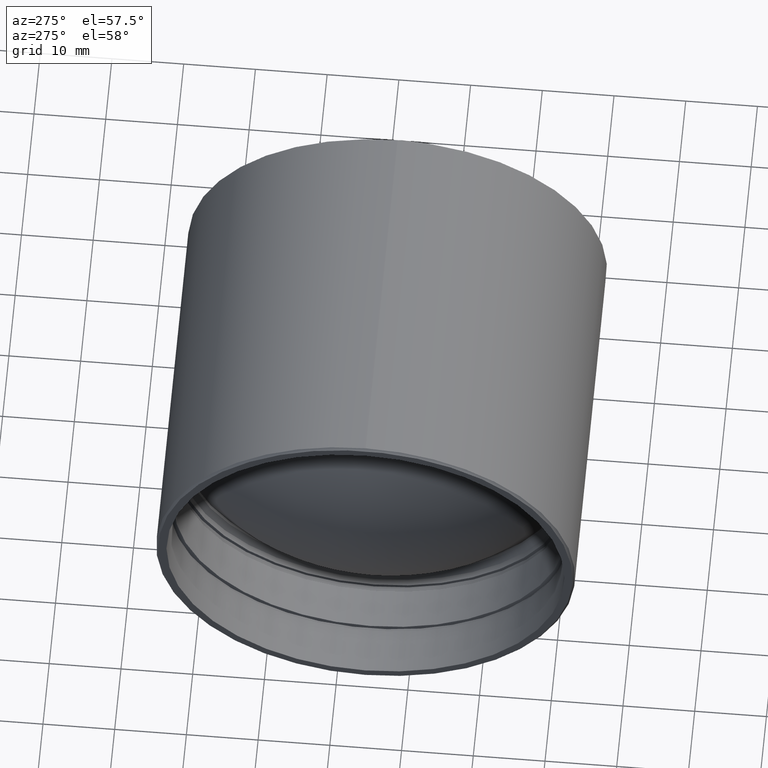
[diagram: clean part render]
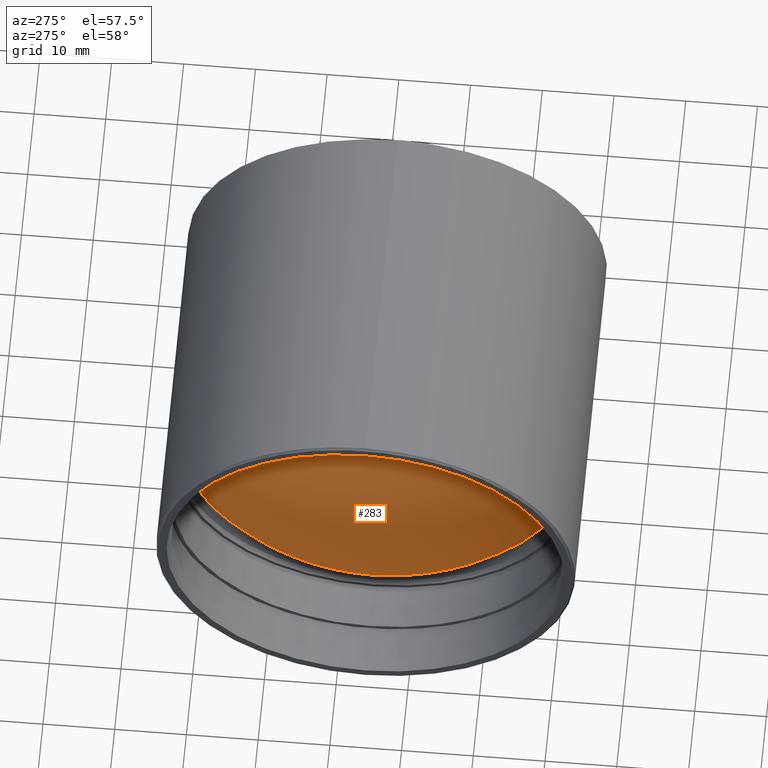
[diagram: same view with one face highlighted and labeled with its STEP entity id]
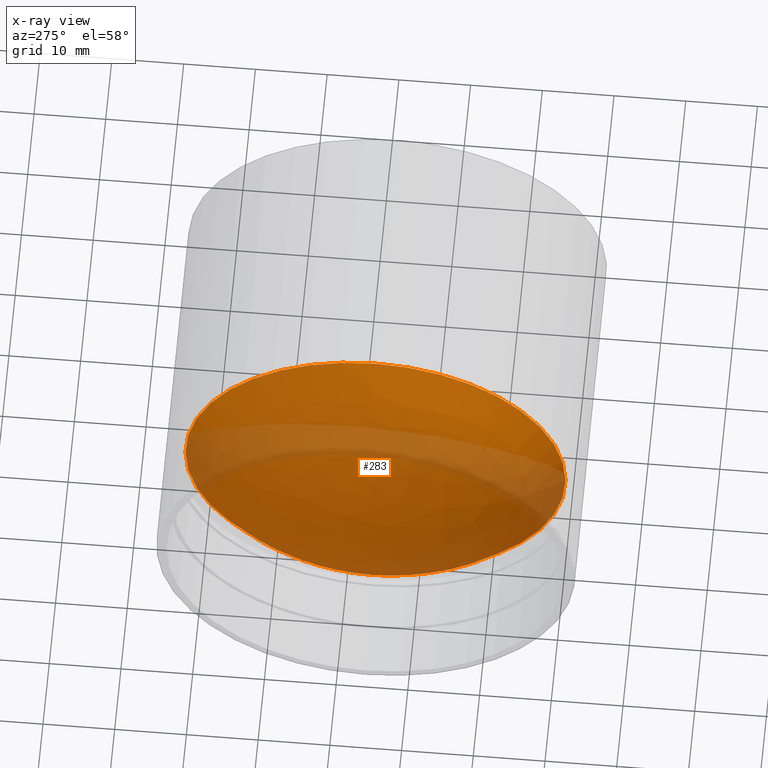
[diagram: x-ray of the same camera — body ghosted, the highlighted face saturated]
A machine part, auxiliary view. The second image highlights one B-rep face of the part: STEP entity #283.
The next image is the same camera in x-ray: the body ghosted, the highlighted face saturated — about 23% of this face is hidden behind the body in this view.
In plain terms, the highlighted face is a freeform B-spline surface patch.
Its self-contained STEP definition (entity closure, byte-faithful):
#9 = EDGE_CURVE ( 'NONE', #302, #302, #541, .T. ) ;
#24 = DIRECTION ( 'NONE',  ( 0.000000000000000000, 0.000000000000000000, 1.000000000000000000 ) ) ;
#54 = CARTESIAN_POINT ( 'NONE',  ( 7884.031329051583270, -230.9651269956691522, -7.798698396183610271 ) ) ;
#100 = CARTESIAN_POINT ( 'NONE',  ( 7883.851557932202923, -215.3549095712787960, -30.23017818756218844 ) ) ;
#112 = CARTESIAN_POINT ( 'NONE',  ( 7865.752709198794946, -215.3549095712787675, 12.52431229562725790 ) ) ;
#148 = CARTESIAN_POINT ( 'NONE',  ( 7883.877952462006760, -177.1731822840436621, 7.744730964376506321 ) ) ;
#157 = CARTESIAN_POINT ( 'NONE',  ( 7895.094178066676250, -230.9651269956691522, 18.55616643682367339 ) ) ;
#209 = ORIENTED_EDGE ( 'NONE', *, *, #9, .T. ) ;
#244 = CARTESIAN_POINT ( 'NONE',  ( 7883.817908520738456, -192.8527843456155608, -30.26478230138167191 ) ) ;
#245 = CARTESIAN_POINT ( 'NONE',  ( 7886.827443883446904, -204.0133481055009383, 26.49999999998009415 ) ) ;
#255 = CARTESIAN_POINT ( 'NONE',  ( 7865.790736222619671, -215.3549095712787675, -12.66764142552375816 ) ) ;
#283 = ADVANCED_FACE ( 'NONE', ( #455 ), #297, .T. ) ;
#290 = CARTESIAN_POINT ( 'NONE',  ( 7895.069841557115979, -177.1731822840436337, -18.69360900155379213 ) ) ;
#293 = CARTESIAN_POINT ( 'NONE',  ( 7883.760427746591631, -215.3549095712787960, 30.14129418943056749 ) ) ;
#297 =( BOUNDED_SURFACE ( )  B_SPLINE_SURFACE ( 3, 3, ( 
 ( #290, #510, #148, #345 ),
 ( #244, #444, #554, #507 ),
 ( #100, #255, #112, #293 ),
 ( #298, #54, #404, #157 ) ),
 .UNSPECIFIED., .F., .F., .T. ) 
 B_SPLINE_SURFACE_WITH_KNOTS ( ( 4, 4 ),
 ( 4, 4 ),
 ( 0.000000000000000000, 1.000000000000000000 ),
 ( 0.000000000000000000, 1.000000000000000000 ),
 .UNSPECIFIED. ) 
 GEOMETRIC_REPRESENTATION_ITEM ( )  RATIONAL_B_SPLINE_SURFACE ( (
 ( 1.000000000000000000, 0.7988195099281881761, 0.7988195099281881761, 1.000000000000000000),
 ( 0.7968424340985801324, 0.6365332826966123569, 0.6365332826966123569, 0.7968424340985801324),
 ( 0.7968424340985801324, 0.6365332826966123569, 0.6365332826966123569, 0.7968424340985801324),
 ( 1.000000000000000000, 0.7988195099281881761, 0.7988195099281881761, 1.000000000000000000) ) ) 
 REPRESENTATION_ITEM ( '' )  SURFACE ( )  );
#298 = CARTESIAN_POINT ( 'NONE',  ( 7895.150281393925070, -230.9651269956691522, -18.61088692269655809 ) ) ;
#302 = VERTEX_POINT ( 'NONE', #245 ) ;
#317 = DIRECTION ( 'NONE',  ( -1.000000000000000000, -0.000000000000000000, -0.000000000000000000 ) ) ;
#345 = CARTESIAN_POINT ( 'NONE',  ( 7895.013488860566213, -177.1731822840436337, 18.63864529286374250 ) ) ;
#404 = CARTESIAN_POINT ( 'NONE',  ( 7884.007918119765236, -230.9651269956691522, 7.710459345369816475 ) ) ;
#420 = AXIS2_PLACEMENT_3D ( 'NONE', #625, #317, #24 ) ;
#444 = CARTESIAN_POINT ( 'NONE',  ( 7865.736412810289039, -192.8527843456156177, -12.68214191913568634 ) ) ;
#455 = FACE_OUTER_BOUND ( 'NONE', #629, .T. ) ;
#507 = CARTESIAN_POINT ( 'NONE',  ( 7883.726674019522761, -192.8527843456155608, 30.17579655883029233 ) ) ;
#510 = CARTESIAN_POINT ( 'NONE',  ( 7883.901467451250028, -177.1731822840436621, -7.833362222061116320 ) ) ;
#541 = CIRCLE ( 'NONE', #420, 26.49999999998009415 ) ;
#554 = CARTESIAN_POINT ( 'NONE',  ( 7865.698342257393961, -192.8527843456156177, 12.53864872214634829 ) ) ;
#625 = CARTESIAN_POINT ( 'NONE',  ( 7886.827443883446904, -204.0133481055009383, 0.000000000000000000 ) ) ;
#629 = EDGE_LOOP ( 'NONE', ( #209 ) ) ;